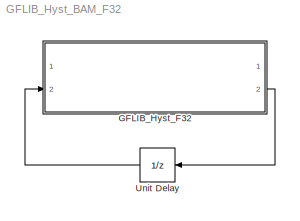
MODEL GFLIB_Hyst_BAM_F32
KIND model
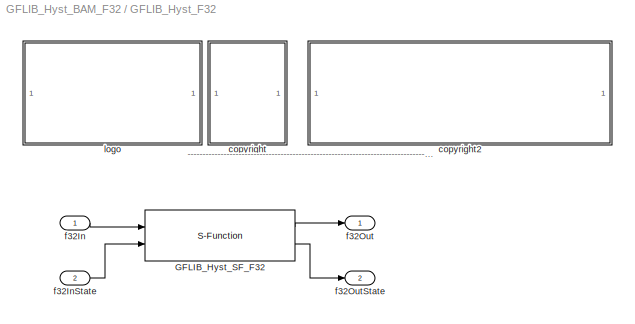
BLOCK [SubSystem] GFLIB_Hyst_F32
  FunctionWithSeparateData = off
  MaskCallbackString = |||
  MaskDescription = Bit accurate model of hysteresis function. All parameters as well as input and output are 32-bit integers.
  MaskDisplay = color('black');port_label('input',1,'f32In');port_label('input',2,'f32InState');port_label('output',1,'f32Out');port_label('output',2,'f32OutState');color('black');disp('GFLIB_Hyst_F32');color('blue');text(tX,tY, 'BAM', 'horizontalAlignment', 'center');
  MaskEnableString = on,on,on,on
  MaskHideContents = off
  MaskIconFrame = on
  MaskIconOpaque = on
  MaskIconRotate = none
  MaskIconUnits = pixels
  MaskInitialization = pos = get_param(gcb, 'Position');width = pos(3) - pos(1); height = pos(4) - pos(2);tX=width/2;tY=height*0.9;
  MaskPortRotate = default
  MaskPromptString = f32HystOn|f32HystOff|f32OutValOn|f32OutValOff
  MaskStyleString = edit,edit,edit,edit
  MaskTabNameString = ,,,
  MaskToolTipString = on,on,on,on
  MaskTunableValueString = on,on,on,on
  MaskType = GFLIB_Hyst_F32
  MaskValueString = f32HystOn|f32HystOff|f32OutValOn|f32OutValOff
  MaskVarAliasString = ,,,
  MaskVariables = f32HystOn=@1;f32HystOff=@2;f32OutValOn=@3;f32OutValOff=@4;
  MaskVisibilityString = on,on,on,on
  MinAlgLoopOccurrences = off
  Opaque = off
  Ports = [2, 2]
  PropExecContextOutsideSubsystem = off
  RTWSystemCode = Auto
  RequestExecContextInheritance = off
BLOCK [S-Function] GFLIB_Hyst_F32/GFLIB_Hyst_SF_F32
  EnableBusSupport = off
  FunctionName = GFLIB_Hyst_SF_F32
  Parameters = f32HystOn,f32HystOff,f32OutValOn,f32OutValOff
  Ports = [2, 2]
BLOCK [SubSystem] GFLIB_Hyst_F32/<copyright redacted>
  FunctionWithSeparateData = off
  MaskDisplay = text(10,90,'FILE:');text(10,75,'DESRIPTION:')text(10,60,'<copyright redacted>
  MaskHideContents = off
  MaskIconFrame = off
  MaskIconOpaque = on
  MaskIconRotate = none
  MaskIconUnits = pixels
  MaskPortRotate = default
  MinAlgLoopOccurrences = off
  Opaque = off
  Ports = []
  PropExecContextOutsideSubsystem = off
  RTWSystemCode = Auto
  RequestExecContextInheritance = off
BLOCK [SubSystem] GFLIB_Hyst_F32/copyright2
  FunctionWithSeparateData = off
  MaskDisplay = text(10,90,'GFLIB_Hyst_BAM_F32.mdl');text(10,75,'Hysteresis function.');text(10,60,'Freescale')text(10,45,'0.1');text(10,30,'09-Apr-2014');
  MaskHideContents = off
  MaskIconFrame = off
  MaskIconOpaque = on
  MaskIconRotate = none
  MaskIconUnits = pixels
  MaskPortRotate = default
  MinAlgLoopOccurrences = off
  Opaque = off
  Ports = []
  PropExecContextOutsideSubsystem = off
  RTWSystemCode = Auto
  RequestExecContextInheritance = off
BLOCK [Inport] GFLIB_Hyst_F32/f32In
  IconDisplay = Port number
  OutDataType = fixdt(1, 16)
  OutScaling = 2^0
BLOCK [Inport] GFLIB_Hyst_F32/f32InState
  IconDisplay = Port number
  OutDataType = fixdt(1, 16)
  OutScaling = 2^0
  Port = 2
BLOCK [Outport] GFLIB_Hyst_F32/f32Out
  IconDisplay = Port number
  OutDataType = fixdt(1, 16)
  OutScaling = 2^0
BLOCK [Outport] GFLIB_Hyst_F32/f32OutState
  IconDisplay = Port number
  OutDataType = fixdt(1, 16)
  OutScaling = 2^0
  Port = 2
BLOCK [SubSystem] GFLIB_Hyst_F32/logo
  FunctionWithSeparateData = off
  MaskDisplay = image(imread('logo.jpg'))
  MaskHideContents = off
  MaskIconFrame = off
  MaskIconOpaque = on
  MaskIconRotate = none
  MaskIconUnits = autoscale
  MaskPortRotate = default
  MinAlgLoopOccurrences = off
  Opaque = off
  Ports = []
  PropExecContextOutsideSubsystem = off
  RTWSystemCode = Auto
  RequestExecContextInheritance = off
BLOCK [UnitDelay] Unit Delay
  SampleTime = -1
ANNOTATION GFLIB_Hyst_F32: ---------------------------------------------------------------------------------------------------------------------------------------------------------------------------------------------------
LINE GFLIB_Hyst_F32/GFLIB_Hyst_SF_F32:1 -> GFLIB_Hyst_F32/f32Out:1
LINE GFLIB_Hyst_F32/GFLIB_Hyst_SF_F32:2 -> GFLIB_Hyst_F32/f32OutState:1
LINE GFLIB_Hyst_F32/f32In:1 -> GFLIB_Hyst_F32/GFLIB_Hyst_SF_F32:1
LINE GFLIB_Hyst_F32/f32InState:1 -> GFLIB_Hyst_F32/GFLIB_Hyst_SF_F32:2
LINE GFLIB_Hyst_F32:2 -> Unit Delay:1
LINE Unit Delay:1 -> GFLIB_Hyst_F32:2
